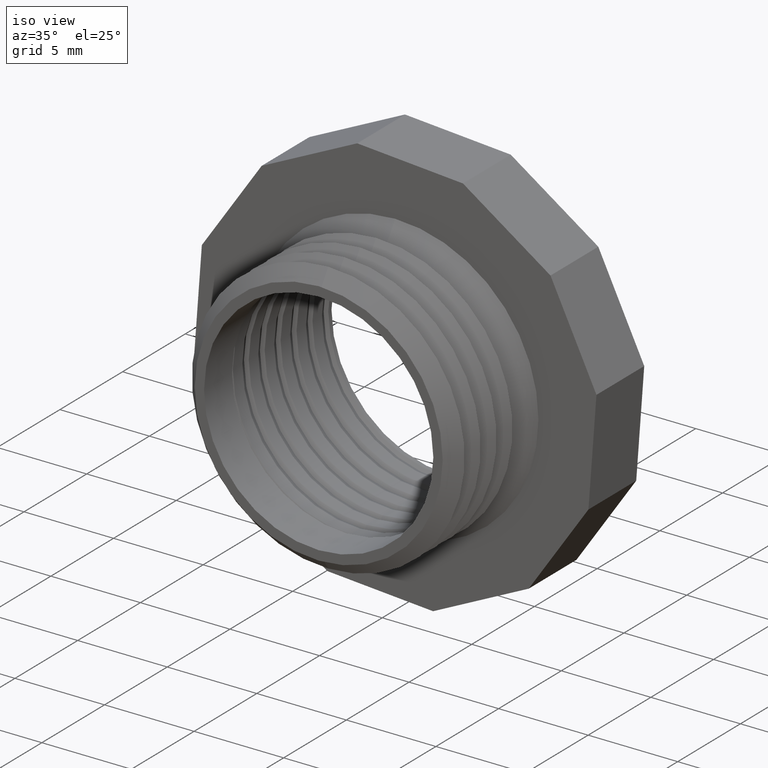
[diagram: clean part render]
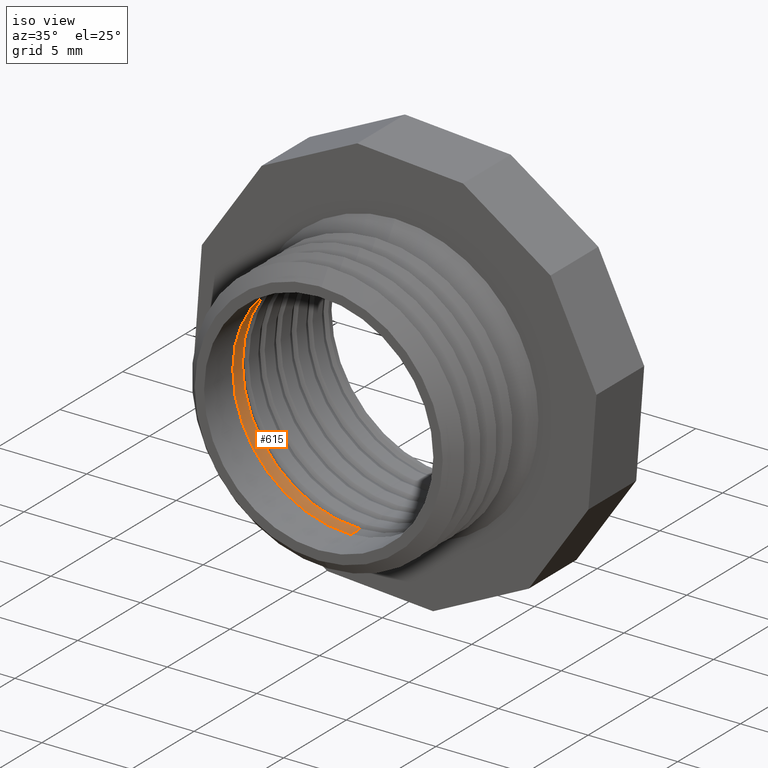
[diagram: same view with one face highlighted and labeled with its STEP entity id]
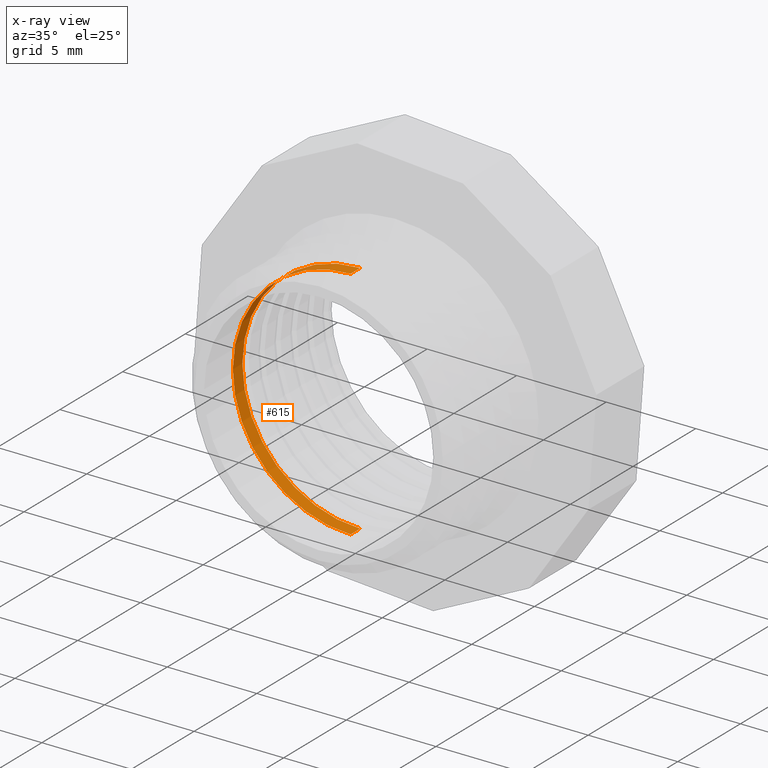
[diagram: x-ray of the same camera — body ghosted, the highlighted face saturated]
A machine part, iso view. The second image highlights one B-rep face of the part: STEP entity #615.
The next image is the same camera in x-ray: the body ghosted, the highlighted face saturated — about 1% of this face is hidden behind the body in this view.
In plain terms, the highlighted cylindrical surface (partial cylindrical patch) has radius 6.5783 mm, axis along (-0, -1, -0).
Its self-contained STEP definition (entity closure, byte-faithful):
#336 = EDGE_CURVE ( 'NONE', #340, #344, #1427, .T. ) ;
#340 = VERTEX_POINT ( 'NONE', #1481 ) ;
#344 = VERTEX_POINT ( 'NONE', #1473 ) ;
#394 = VERTEX_POINT ( 'NONE', #1566 ) ;
#396 = EDGE_CURVE ( 'NONE', #397, #394, #1564, .T. ) ;
#397 = VERTEX_POINT ( 'NONE', #1559 ) ;
#615 = ADVANCED_FACE ( 'NONE', ( #1952 ), #1951, .F. ) ;
#628 = ORIENTED_EDGE ( 'NONE', *, *, #336, .F. ) ;
#629 = ORIENTED_EDGE ( 'NONE', *, *, #630, .T. ) ;
#630 = EDGE_CURVE ( 'NONE', #340, #394, #1984, .T. ) ;
#631 = ORIENTED_EDGE ( 'NONE', *, *, #396, .F. ) ;
#632 = ORIENTED_EDGE ( 'NONE', *, *, #633, .F. ) ;
#633 = EDGE_CURVE ( 'NONE', #344, #397, #2040, .T. ) ;
#666 = EDGE_LOOP ( 'NONE', ( #628, #629, #631, #632 ) ) ;
#1423 = DIRECTION ( 'NONE',  ( 0.0000000000000000000, 0.0000000000000000000, 1.000000000000000000 ) ) ;
#1424 = DIRECTION ( 'NONE',  ( 0.0000000000000000000, -1.000000000000000000, 0.0000000000000000000 ) ) ;
#1425 = CARTESIAN_POINT ( 'NONE',  ( 0.0000000000000000000, 0.1278198431448200600, 0.0000000000000000000 ) ) ;
#1426 = AXIS2_PLACEMENT_3D ( 'NONE', #1425, #1424, #1423 ) ;
#1427 = CIRCLE ( 'NONE', #1426, 0.2589880461203001900 ) ;
#1473 = CARTESIAN_POINT ( 'NONE',  ( 0.0000000000000000000, 0.1278198431448200600, -0.2589880461203001900 ) ) ;
#1481 = CARTESIAN_POINT ( 'NONE',  ( 3.171688816986526800E-017, 0.1278198431448200600, 0.2589880461203001900 ) ) ;
#1559 = CARTESIAN_POINT ( 'NONE',  ( 0.0000000000000000000, 0.09777750264114852500, -0.2589880461203001900 ) ) ;
#1560 = DIRECTION ( 'NONE',  ( 0.0000000000000000000, 0.0000000000000000000, -1.000000000000000000 ) ) ;
#1561 = DIRECTION ( 'NONE',  ( -0.0000000000000000000, 1.000000000000000000, -0.0000000000000000000 ) ) ;
#1562 = CARTESIAN_POINT ( 'NONE',  ( 0.0000000000000000000, 0.09777750264114852500, 0.0000000000000000000 ) ) ;
#1563 = AXIS2_PLACEMENT_3D ( 'NONE', #1562, #1561, #1560 ) ;
#1564 = CIRCLE ( 'NONE', #1563, 0.2589880461203001900 ) ;
#1566 = CARTESIAN_POINT ( 'NONE',  ( 3.171688816986526800E-017, 0.09777750264114852500, 0.2589880461203001900 ) ) ;
#1950 = AXIS2_PLACEMENT_3D ( 'NONE', #2009, #2008, #2007 ) ;
#1951 = CYLINDRICAL_SURFACE ( 'NONE', #1950, 0.2589880461203001900 ) ;
#1952 = FACE_OUTER_BOUND ( 'NONE', #666, .T. ) ;
#1981 = DIRECTION ( 'NONE',  ( -0.0000000000000000000, -1.000000000000000000, -0.0000000000000000000 ) ) ;
#1982 = VECTOR ( 'NONE', #1981, 39.37007874015748100 ) ;
#1983 = CARTESIAN_POINT ( 'NONE',  ( 3.171688816986526800E-017, 0.0000000000000000000, 0.2589880461203001900 ) ) ;
#1984 = LINE ( 'NONE', #1983, #1982 ) ;
#2007 = DIRECTION ( 'NONE',  ( 0.0000000000000000000, 0.0000000000000000000, -1.000000000000000000 ) ) ;
#2008 = DIRECTION ( 'NONE',  ( -0.0000000000000000000, -1.000000000000000000, -0.0000000000000000000 ) ) ;
#2009 = CARTESIAN_POINT ( 'NONE',  ( 0.0000000000000000000, 0.0000000000000000000, 0.0000000000000000000 ) ) ;
#2037 = DIRECTION ( 'NONE',  ( -0.0000000000000000000, -1.000000000000000000, -0.0000000000000000000 ) ) ;
#2038 = VECTOR ( 'NONE', #2037, 39.37007874015748100 ) ;
#2039 = CARTESIAN_POINT ( 'NONE',  ( 0.0000000000000000000, 0.0000000000000000000, -0.2589880461203001900 ) ) ;
#2040 = LINE ( 'NONE', #2039, #2038 ) ;